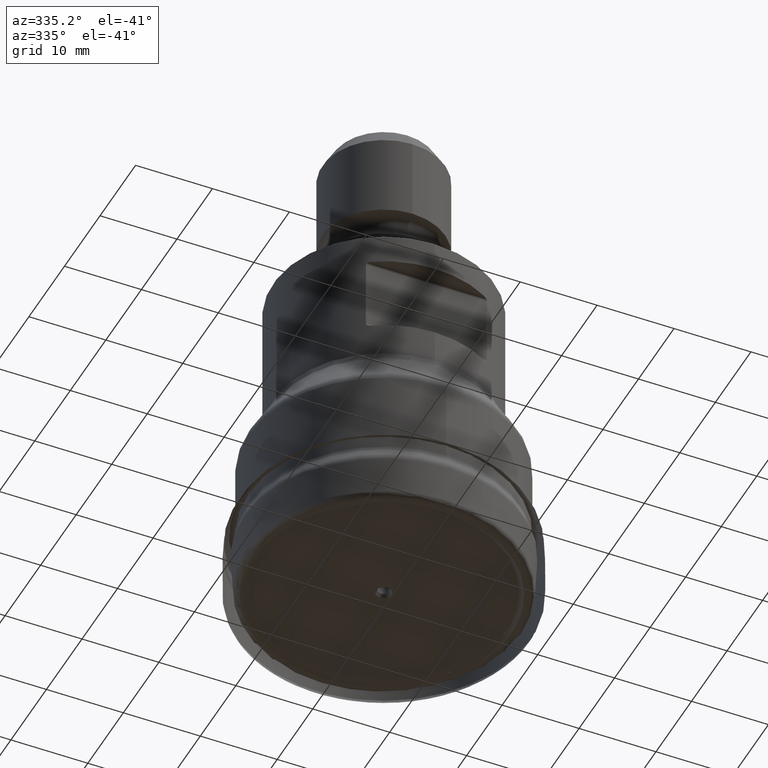
[diagram: clean part render]
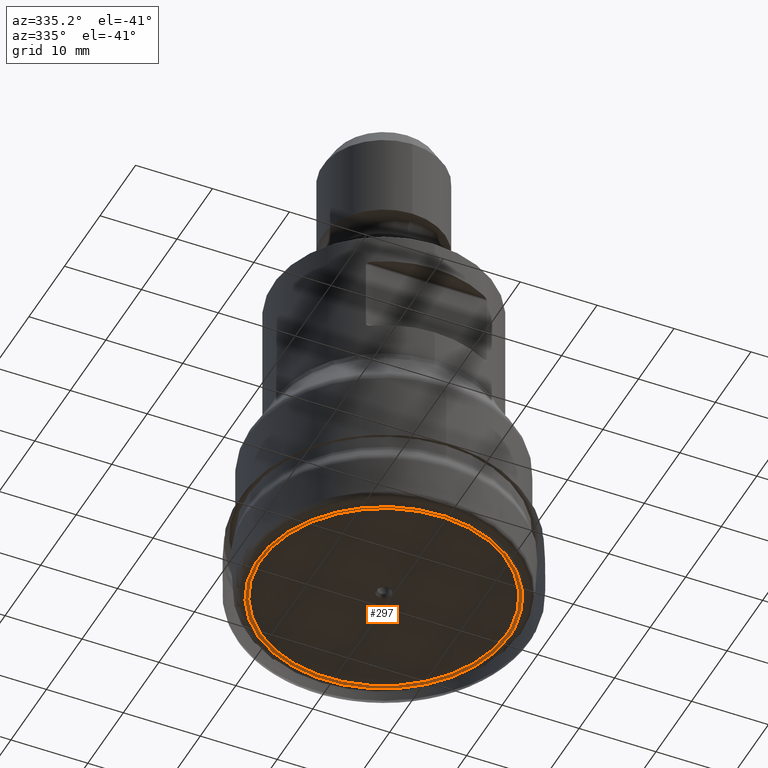
[diagram: same view with one face highlighted and labeled with its STEP entity id]
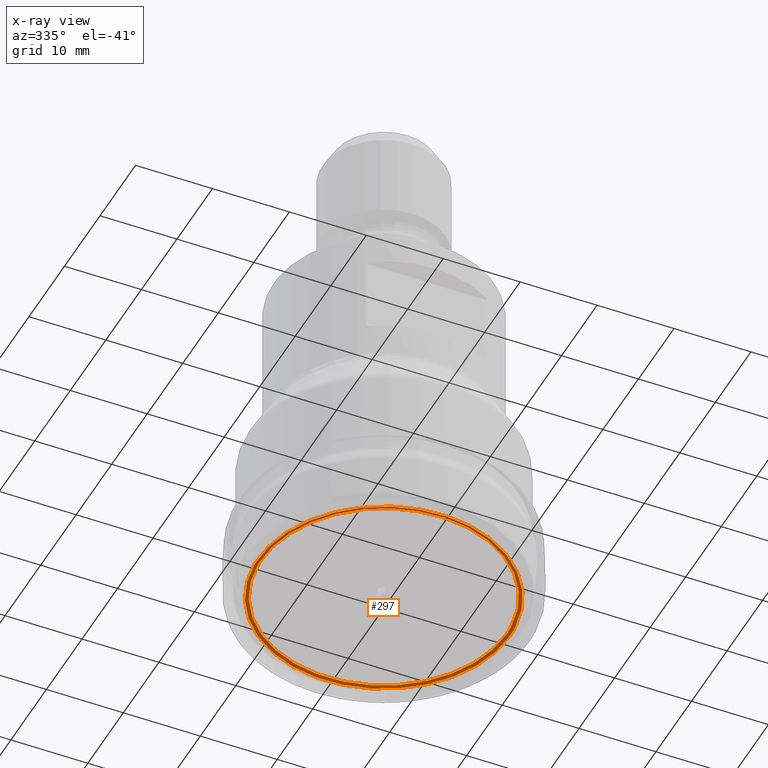
[diagram: x-ray of the same camera — body ghosted, the highlighted face saturated]
A machine part, auxiliary view. The second image highlights one B-rep face of the part: STEP entity #297.
The next image is the same camera in x-ray: the body ghosted, the highlighted face saturated — about 0% of this face is hidden behind the body in this view.
In plain terms, the highlighted face is a SurfaceOfRevolution surface.
Its self-contained STEP definition (entity closure, byte-faithful):
#131=SURFACE_OF_REVOLUTION('',#965,#155);
#155=AXIS1_PLACEMENT('',#2023,#1310);
#297=ADVANCED_FACE('',(#420,#421),#131,.F.);
#420=FACE_BOUND('',#542,.T.);
#421=FACE_BOUND('',#543,.T.);
#542=EDGE_LOOP('',(#700));
#543=EDGE_LOOP('',(#701));
#700=ORIENTED_EDGE('',*,*,#853,.T.);
#701=ORIENTED_EDGE('',*,*,#830,.F.);
#751=VERTEX_POINT('',#1827);
#774=VERTEX_POINT('',#2013);
#830=EDGE_CURVE('',#751,#751,#889,.T.);
#853=EDGE_CURVE('',#774,#774,#912,.T.);
#889=CIRCLE('',#1044,15.9526105859611);
#912=CIRCLE('',#1067,16.3971386140664);
#965=B_SPLINE_CURVE_WITH_KNOTS('',3,(#2019,#2020,#2021,#2022),
 .UNSPECIFIED.,.F.,.F.,(4,4),(0.,1.),.UNSPECIFIED.);
#1044=AXIS2_PLACEMENT_3D('',#1826,#1236,#1237);
#1067=AXIS2_PLACEMENT_3D('',#2012,#1307,#1308);
#1236=DIRECTION('',(0.,0.,1.));
#1237=DIRECTION('',(1.,0.,0.));
#1307=DIRECTION('',(0.,0.,1.));
#1308=DIRECTION('',(1.,0.,0.));
#1310=DIRECTION('',(0.,0.,1.));
#1826=CARTESIAN_POINT('',(0.,0.,0.41901450588603));
#1827=CARTESIAN_POINT('',(15.9526105859611,0.,0.41901450588603));
#2012=CARTESIAN_POINT('',(0.,0.,0.306582601429912));
#2013=CARTESIAN_POINT('',(16.3971386140664,0.,0.306582601429912));
#2019=CARTESIAN_POINT('',(15.814332092771,-2.09587331842193,0.41901450588603));
#2020=CARTESIAN_POINT('',(15.9585453089973,-2.17198461642968,0.401865863221983));
#2021=CARTESIAN_POINT('',(16.0984140138758,-2.24987932671613,0.363481910608977));
#2022=CARTESIAN_POINT('',(16.2310934742878,-2.32760807651133,0.306582601429912));
#2023=CARTESIAN_POINT('',(0.,0.,0.));